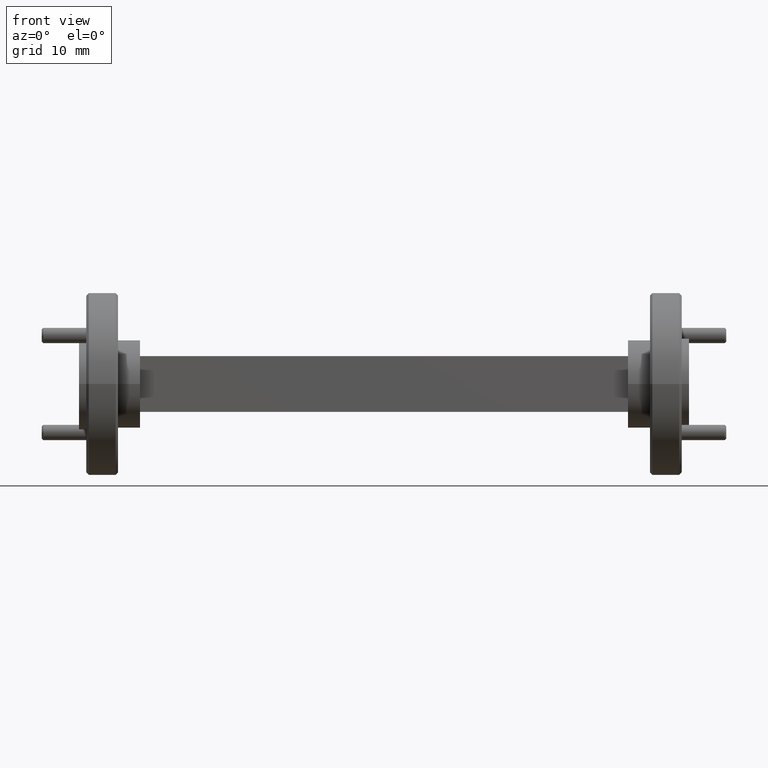
[diagram: clean part render]
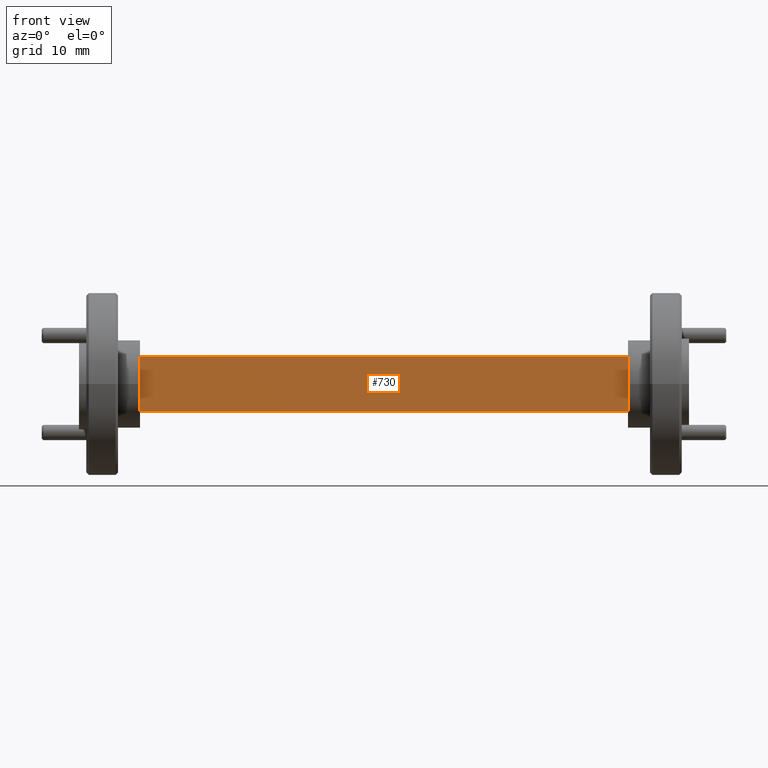
[diagram: same view with one face highlighted and labeled with its STEP entity id]
A machine part, front view. The second image highlights one B-rep face of the part: STEP entity #730.
In plain terms, the highlighted planar face has unit normal (-0, 1, 0).
Its self-contained STEP definition (entity closure, byte-faithful):
#191 = VERTEX_POINT ( 'NONE', #2591 ) ;
#247 = PLANE ( 'NONE',  #3499 ) ;
#264 = CARTESIAN_POINT ( 'NONE',  ( 0.2499999999999999722, -0.07699999999999988798, -0.1139999999999999764 ) ) ;
#272 = CARTESIAN_POINT ( 'NONE',  ( 2.250000000000000000, -0.07699999999999949940, 0.3749999999999996669 ) ) ;
#310 = CARTESIAN_POINT ( 'NONE',  ( 0.2500000000000000000, -0.07699999999999988798, 0.1139999999999999764 ) ) ;
#449 = VECTOR ( 'NONE', #3989, 39.37007874015748143 ) ;
#470 = ORIENTED_EDGE ( 'NONE', *, *, #2465, .F. ) ;
#584 = VECTOR ( 'NONE', #1793, 39.37007874015748143 ) ;
#653 = LINE ( 'NONE', #673, #449 ) ;
#673 = CARTESIAN_POINT ( 'NONE',  ( 0.2500000000000000555, -0.07699999999999992961, 0.3749999999999996669 ) ) ;
#723 = VERTEX_POINT ( 'NONE', #2939 ) ;
#730 = ADVANCED_FACE ( 'NONE', ( #4207 ), #247, .F. ) ;
#761 = EDGE_CURVE ( 'NONE', #2574, #191, #653, .T. ) ;
#1090 = LINE ( 'NONE', #1168, #584 ) ;
#1145 = EDGE_LOOP ( 'NONE', ( #470, #1484, #2274, #1516 ) ) ;
#1168 = CARTESIAN_POINT ( 'NONE',  ( 2.250000000000000000, -0.07699999999999949940, 0.3749999999999996669 ) ) ;
#1172 = VERTEX_POINT ( 'NONE', #4267 ) ;
#1259 = LINE ( 'NONE', #264, #3800 ) ;
#1484 = ORIENTED_EDGE ( 'NONE', *, *, #2688, .F. ) ;
#1516 = ORIENTED_EDGE ( 'NONE', *, *, #2578, .F. ) ;
#1644 = DIRECTION ( 'NONE',  ( 1.000000000000000000, 2.134256245050205948E-16, 2.561107494060247075E-17 ) ) ;
#1793 = DIRECTION ( 'NONE',  ( -0.000000000000000000, -0.000000000000000000, -1.000000000000000000 ) ) ;
#1882 = CARTESIAN_POINT ( 'NONE',  ( 0.2500000000000000555, -0.07699999999999988798, 0.1139999999999999764 ) ) ;
#2133 = LINE ( 'NONE', #310, #2504 ) ;
#2274 = ORIENTED_EDGE ( 'NONE', *, *, #761, .T. ) ;
#2277 = DIRECTION ( 'NONE',  ( -1.000000000000000000, -2.134256245050205948E-16, -2.561107494060247075E-17 ) ) ;
#2465 = EDGE_CURVE ( 'NONE', #1172, #723, #1090, .T. ) ;
#2504 = VECTOR ( 'NONE', #1644, 39.37007874015748143 ) ;
#2574 = VERTEX_POINT ( 'NONE', #1882 ) ;
#2578 = EDGE_CURVE ( 'NONE', #723, #191, #1259, .T. ) ;
#2591 = CARTESIAN_POINT ( 'NONE',  ( 0.2500000000000000555, -0.07699999999999992961, -0.1140000000000000041 ) ) ;
#2688 = EDGE_CURVE ( 'NONE', #2574, #1172, #2133, .T. ) ;
#2840 = DIRECTION ( 'NONE',  ( -2.134256245050205948E-16, 1.000000000000000000, 0.000000000000000000 ) ) ;
#2939 = CARTESIAN_POINT ( 'NONE',  ( 2.250000000000000000, -0.07699999999999949940, -0.1139999999999999347 ) ) ;
#3499 = AXIS2_PLACEMENT_3D ( 'NONE', #272, #2840, #4162 ) ;
#3800 = VECTOR ( 'NONE', #2277, 39.37007874015748143 ) ;
#3989 = DIRECTION ( 'NONE',  ( -0.000000000000000000, -0.000000000000000000, -1.000000000000000000 ) ) ;
#4162 = DIRECTION ( 'NONE',  ( -1.000000000000000000, -2.134256245050205948E-16, 0.000000000000000000 ) ) ;
#4207 = FACE_OUTER_BOUND ( 'NONE', #1145, .T. ) ;
#4267 = CARTESIAN_POINT ( 'NONE',  ( 2.250000000000000000, -0.07699999999999949940, 0.1140000000000000041 ) ) ;